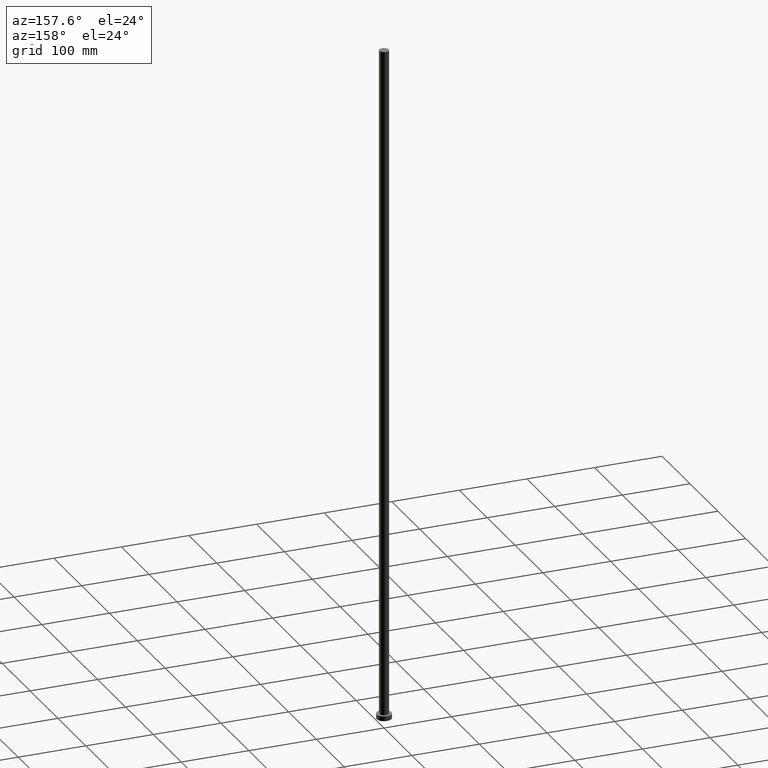
[diagram: clean part render]
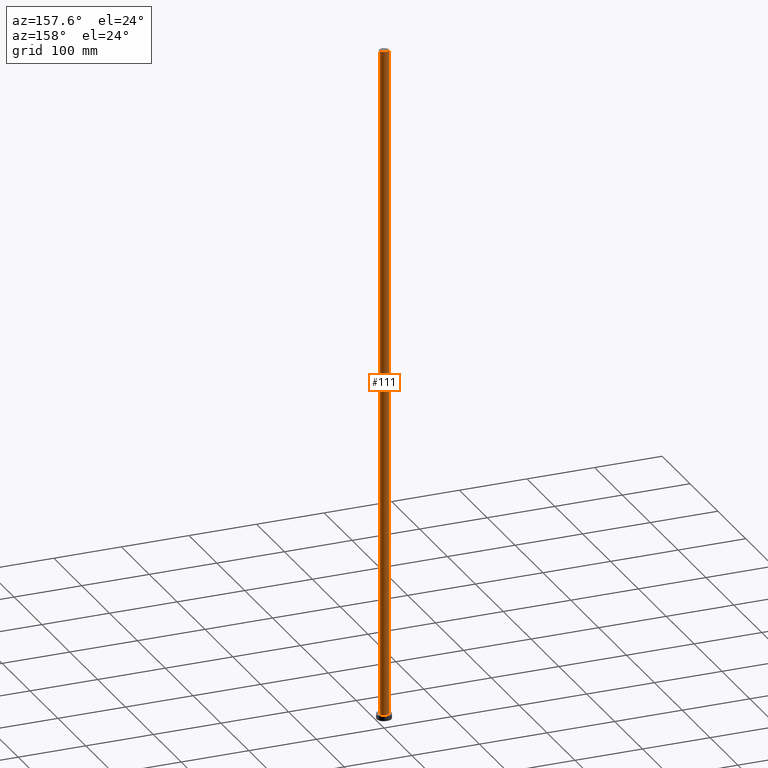
[diagram: same view with one face highlighted and labeled with its STEP entity id]
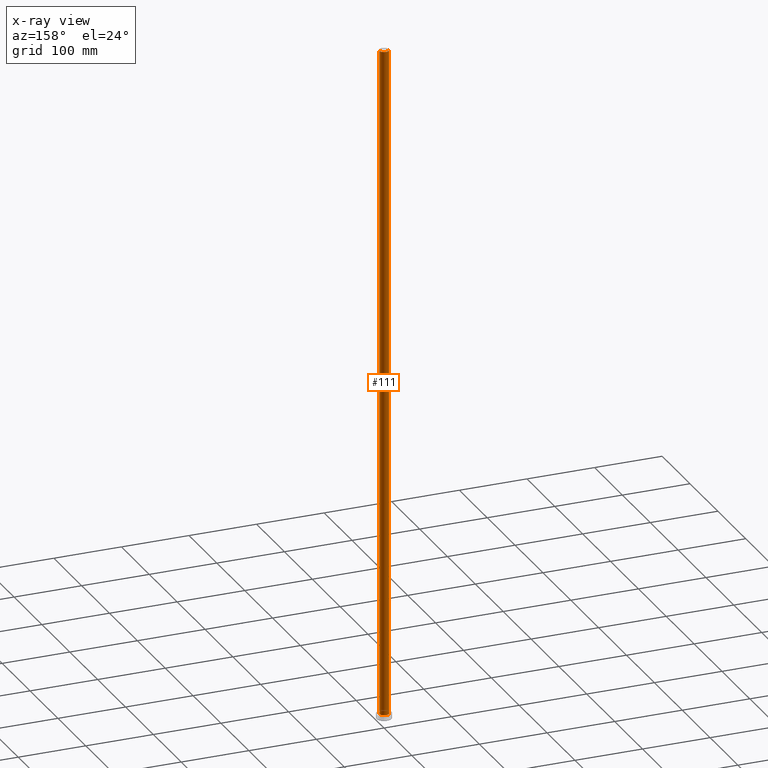
[diagram: x-ray of the same camera — body ghosted, the highlighted face saturated]
A machine part, auxiliary view. The second image highlights one B-rep face of the part: STEP entity #111.
The next image is the same camera in x-ray: the body ghosted, the highlighted face saturated — about 0% of this face is hidden behind the body in this view.
In plain terms, the highlighted cylindrical surface (edge-blend (fillet) strip) has radius 7 mm, axis along (-0, -0, -1).
Its self-contained STEP definition (entity closure, byte-faithful):
#7 = CIRCLE ( 'NONE', #236, 7.000000000000000888 ) ;
#12 = CARTESIAN_POINT ( 'NONE',  ( -7.000000000000000888, 0.000000000000000000, 1000.000000000000000 ) ) ;
#17 = DIRECTION ( 'NONE',  ( -0.000000000000000000, -0.000000000000000000, -1.000000000000000000 ) ) ;
#28 = VERTEX_POINT ( 'NONE', #161 ) ;
#35 = CARTESIAN_POINT ( 'NONE',  ( 0.000000000000000000, 0.000000000000000000, 1000.000000000000000 ) ) ;
#67 = LINE ( 'NONE', #12, #95 ) ;
#70 = LINE ( 'NONE', #129, #168 ) ;
#75 = DIRECTION ( 'NONE',  ( 0.000000000000000000, 0.000000000000000000, 1.000000000000000000 ) ) ;
#85 = CARTESIAN_POINT ( 'NONE',  ( 0.000000000000000000, 0.000000000000000000, 1000.000000000000000 ) ) ;
#86 = VERTEX_POINT ( 'NONE', #128 ) ;
#95 = VECTOR ( 'NONE', #231, 1000.000000000000000 ) ;
#99 = ORIENTED_EDGE ( 'NONE', *, *, #175, .F. ) ;
#111 = ADVANCED_FACE ( 'NONE', ( #205 ), #189, .T. ) ;
#118 = CIRCLE ( 'NONE', #177, 7.000000000000000888 ) ;
#125 = DIRECTION ( 'NONE',  ( 0.000000000000000000, 0.000000000000000000, 1.000000000000000000 ) ) ;
#128 = CARTESIAN_POINT ( 'NONE',  ( -7.000000000000000888, 0.000000000000000000, 1000.000000000000000 ) ) ;
#129 = CARTESIAN_POINT ( 'NONE',  ( 7.000000000000000888, 8.572527594031474176E-16, 1000.000000000000000 ) ) ;
#135 = ORIENTED_EDGE ( 'NONE', *, *, #255, .F. ) ;
#144 = DIRECTION ( 'NONE',  ( -0.000000000000000000, -0.000000000000000000, -1.000000000000000000 ) ) ;
#154 = ORIENTED_EDGE ( 'NONE', *, *, #225, .T. ) ;
#155 = DIRECTION ( 'NONE',  ( -1.000000000000000000, 0.000000000000000000, 0.000000000000000000 ) ) ;
#157 = DIRECTION ( 'NONE',  ( 1.000000000000000000, 0.000000000000000000, 0.000000000000000000 ) ) ;
#161 = CARTESIAN_POINT ( 'NONE',  ( 7.000000000000000888, 8.572527594031474176E-16, 1000.000000000000000 ) ) ;
#168 = VECTOR ( 'NONE', #144, 1000.000000000000000 ) ;
#169 = EDGE_CURVE ( 'NONE', #235, #194, #118, .T. ) ;
#175 = EDGE_CURVE ( 'NONE', #28, #86, #7, .T. ) ;
#177 = AXIS2_PLACEMENT_3D ( 'NONE', #252, #75, #232 ) ;
#187 = CARTESIAN_POINT ( 'NONE',  ( -7.000000000000000888, 0.000000000000000000, 7.000000000000000000 ) ) ;
#189 = CYLINDRICAL_SURFACE ( 'NONE', #251, 7.000000000000000888 ) ;
#194 = VERTEX_POINT ( 'NONE', #187 ) ;
#196 = EDGE_LOOP ( 'NONE', ( #99, #154, #240, #135 ) ) ;
#205 = FACE_OUTER_BOUND ( 'NONE', #196, .T. ) ;
#225 = EDGE_CURVE ( 'NONE', #28, #235, #70, .T. ) ;
#229 = CARTESIAN_POINT ( 'NONE',  ( 7.000000000000000888, 8.572527594031474176E-16, 7.000000000000000000 ) ) ;
#231 = DIRECTION ( 'NONE',  ( -0.000000000000000000, -0.000000000000000000, -1.000000000000000000 ) ) ;
#232 = DIRECTION ( 'NONE',  ( 1.000000000000000000, 0.000000000000000000, 0.000000000000000000 ) ) ;
#235 = VERTEX_POINT ( 'NONE', #229 ) ;
#236 = AXIS2_PLACEMENT_3D ( 'NONE', #85, #125, #157 ) ;
#240 = ORIENTED_EDGE ( 'NONE', *, *, #169, .T. ) ;
#251 = AXIS2_PLACEMENT_3D ( 'NONE', #35, #17, #155 ) ;
#252 = CARTESIAN_POINT ( 'NONE',  ( 0.000000000000000000, 0.000000000000000000, 7.000000000000000000 ) ) ;
#255 = EDGE_CURVE ( 'NONE', #86, #194, #67, .T. ) ;